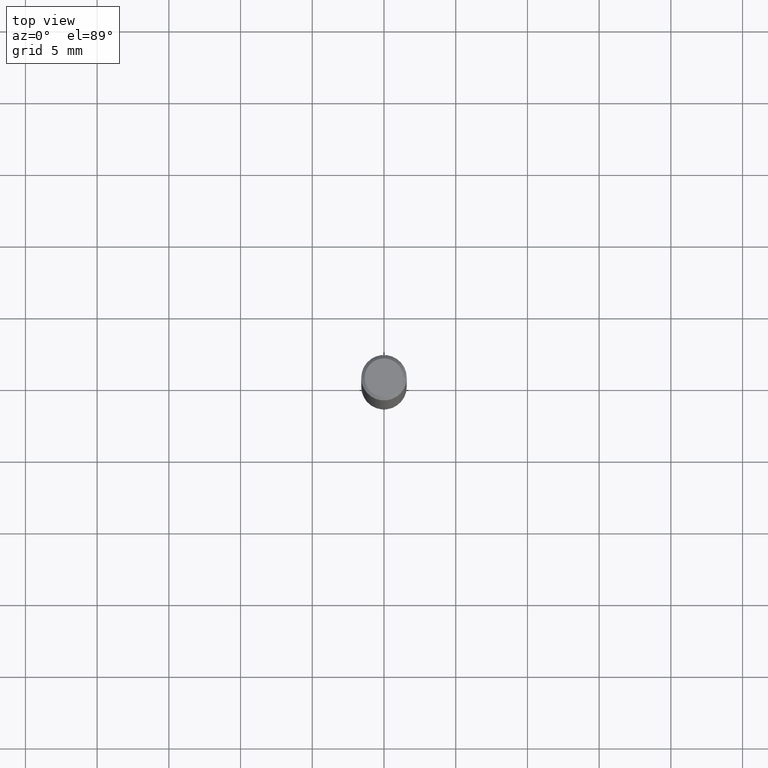
[diagram: clean part render]
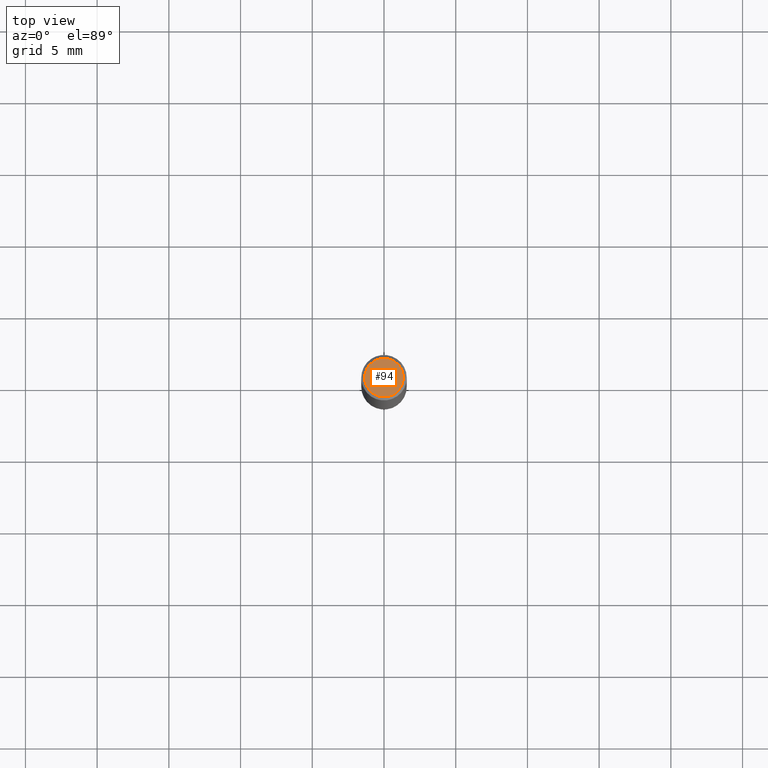
[diagram: same view with one face highlighted and labeled with its STEP entity id]
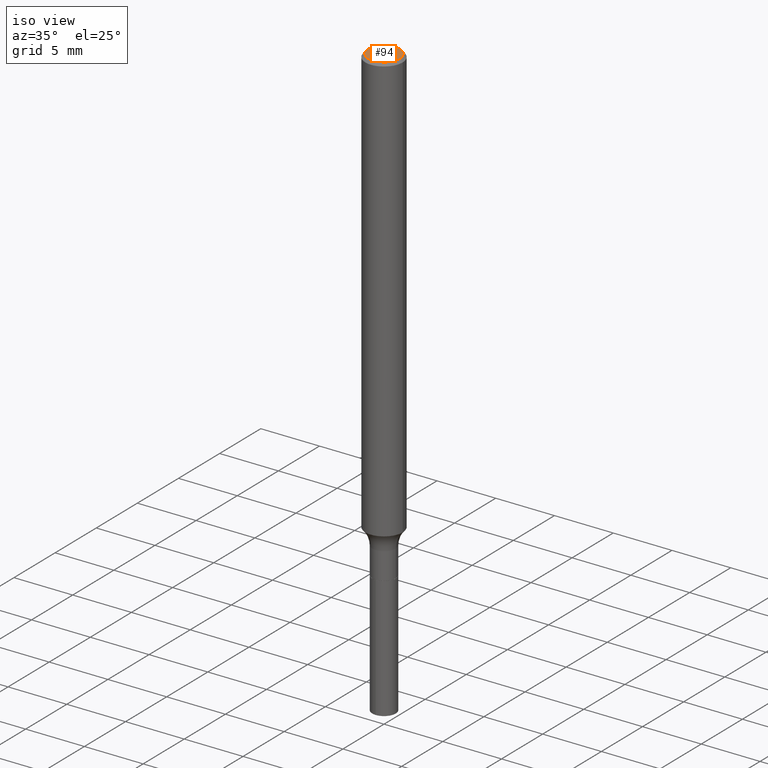
[diagram: same view with one face highlighted and labeled with its STEP entity id]
A machine part, top view. The second image highlights one B-rep face of the part: STEP entity #94.
A second angle (iso view) of the same face is appended — the face is thin or edge-on in the first view.
In plain terms, the highlighted planar face has unit normal (0, -0, -1).
Its self-contained STEP definition (entity closure, byte-faithful):
#3 = EDGE_CURVE ( 'NONE', #393, #280, #43, .T. ) ;
#18 = CARTESIAN_POINT ( 'NONE',  ( -8.782355238379108562E-48, 1.253887571509288664E-33, 3.591276738499616421E-19 ) ) ;
#24 = CARTESIAN_POINT ( 'NONE',  ( 0.05312499999999999861, -4.129888592719940335E-16, 3.591276738527027701E-19 ) ) ;
#43 = CIRCLE ( 'NONE', #91, 0.05312499999999999861 ) ;
#45 = ORIENTED_EDGE ( 'NONE', *, *, #249, .T. ) ;
#57 = CARTESIAN_POINT ( 'NONE',  ( -4.391177619189554281E-48, 6.269437857546443321E-34, 1.795638369249808211E-19 ) ) ;
#80 = ORIENTED_EDGE ( 'NONE', *, *, #3, .T. ) ;
#91 = AXIS2_PLACEMENT_3D ( 'NONE', #18, #396, #229 ) ;
#94 = ADVANCED_FACE ( 'NONE', ( #256 ), #136, .F. ) ;
#96 = DIRECTION ( 'NONE',  ( -1.000000000000000000, 6.982962677686265922E-15, -4.876176775795935793E-29 ) ) ;
#136 = PLANE ( 'NONE',  #489 ) ;
#137 = CARTESIAN_POINT ( 'NONE',  ( -0.05312499999999999861, 3.873362110279099094E-16, 3.591276738473101181E-19 ) ) ;
#229 = DIRECTION ( 'NONE',  ( 1.000000000000000000, -6.982962677686266711E-15, 4.876153107228683844E-29 ) ) ;
#231 = CARTESIAN_POINT ( 'NONE',  ( -8.782355238379108562E-48, 1.253887571509288664E-33, 3.591276738499616421E-19 ) ) ;
#249 = EDGE_CURVE ( 'NONE', #280, #393, #284, .T. ) ;
#256 = FACE_OUTER_BOUND ( 'NONE', #316, .T. ) ;
#280 = VERTEX_POINT ( 'NONE', #24 ) ;
#284 = CIRCLE ( 'NONE', #386, 0.05312499999999999861 ) ;
#288 = DIRECTION ( 'NONE',  ( 2.438088387897960049E-29, -3.491481338843145188E-15, -1.000000000000000000 ) ) ;
#308 = DIRECTION ( 'NONE',  ( -2.445468806185136597E-29, 3.491481338843145583E-15, 1.000000000000000000 ) ) ;
#316 = EDGE_LOOP ( 'NONE', ( #80, #45 ) ) ;
#386 = AXIS2_PLACEMENT_3D ( 'NONE', #231, #308, #467 ) ;
#393 = VERTEX_POINT ( 'NONE', #137 ) ;
#396 = DIRECTION ( 'NONE',  ( -2.445468806185136597E-29, 3.491481338843145583E-15, 1.000000000000000000 ) ) ;
#467 = DIRECTION ( 'NONE',  ( 1.000000000000000000, -6.982962677686266711E-15, 4.876153107228683844E-29 ) ) ;
#489 = AXIS2_PLACEMENT_3D ( 'NONE', #57, #288, #96 ) ;